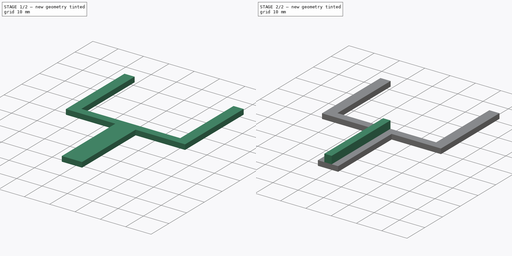
[diagram: build sequence overview — one tinted view per stage of 2, left to right]
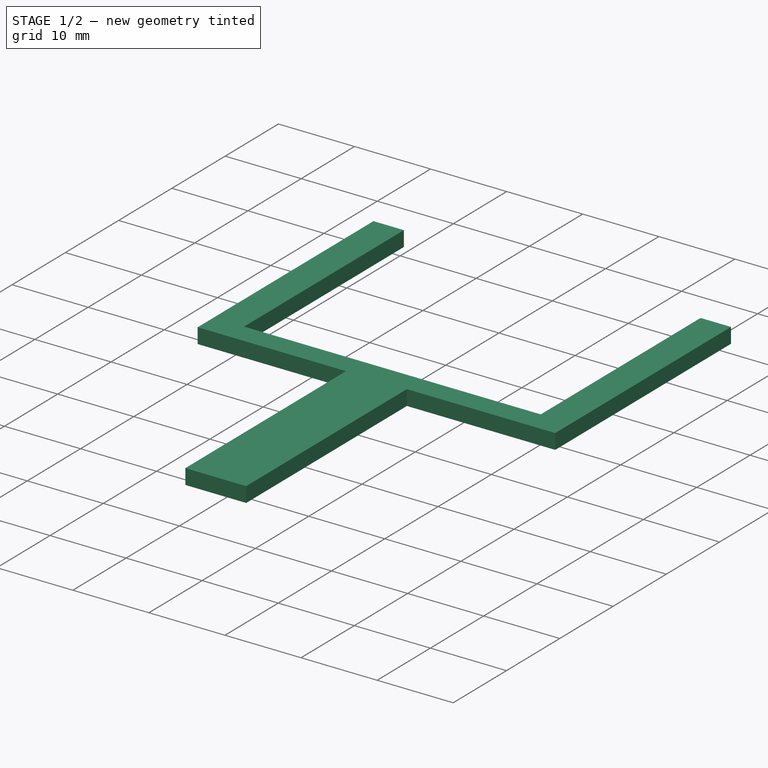
[diagram: stage 1 of 2 — iso view after this stage's code; geometry added in this stage tinted green]
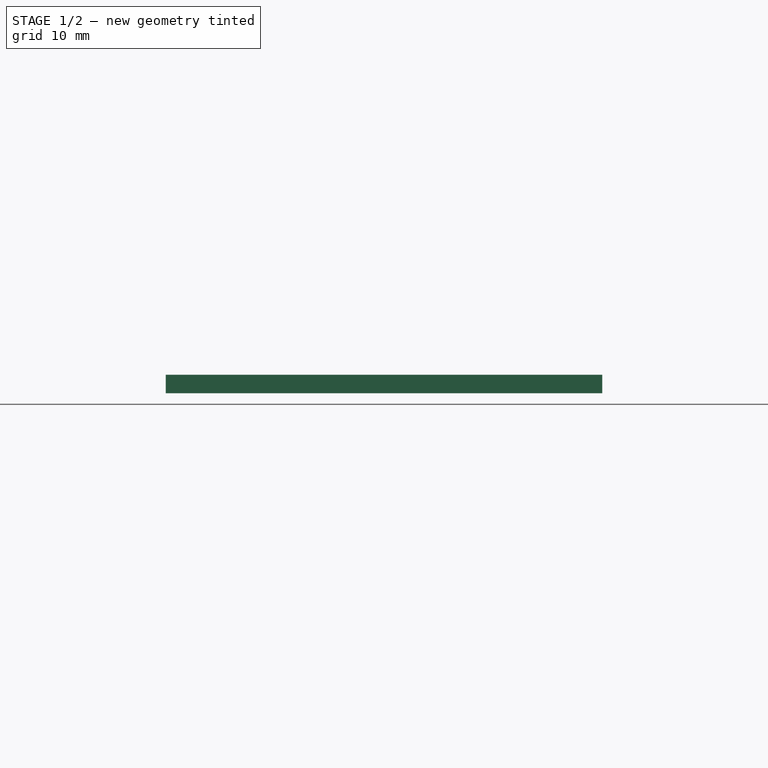
[diagram: stage 1 of 2 — front view after this stage's code; geometry added in this stage tinted green]
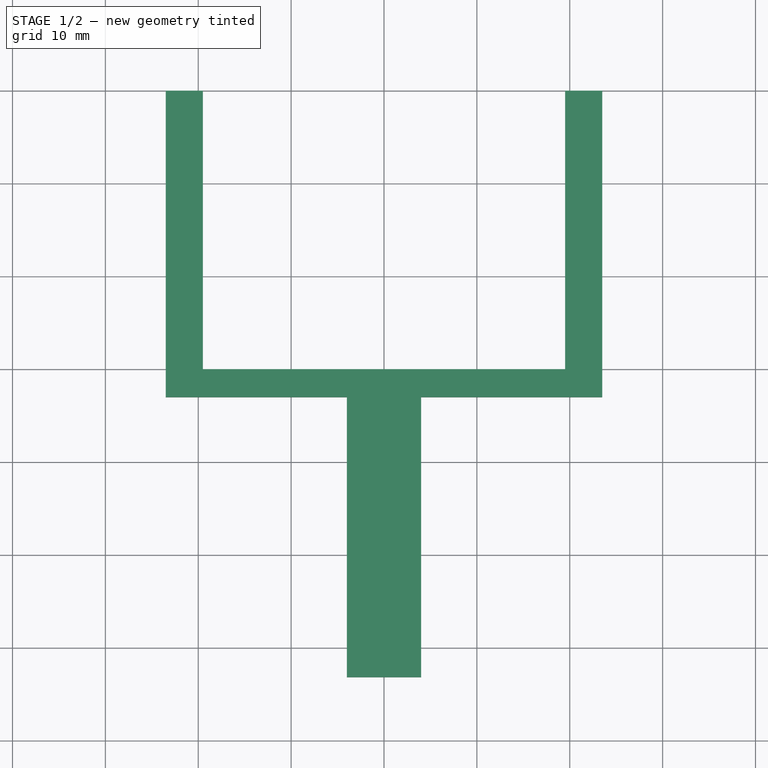
[diagram: stage 1 of 2 — top view after this stage's code; geometry added in this stage tinted green]
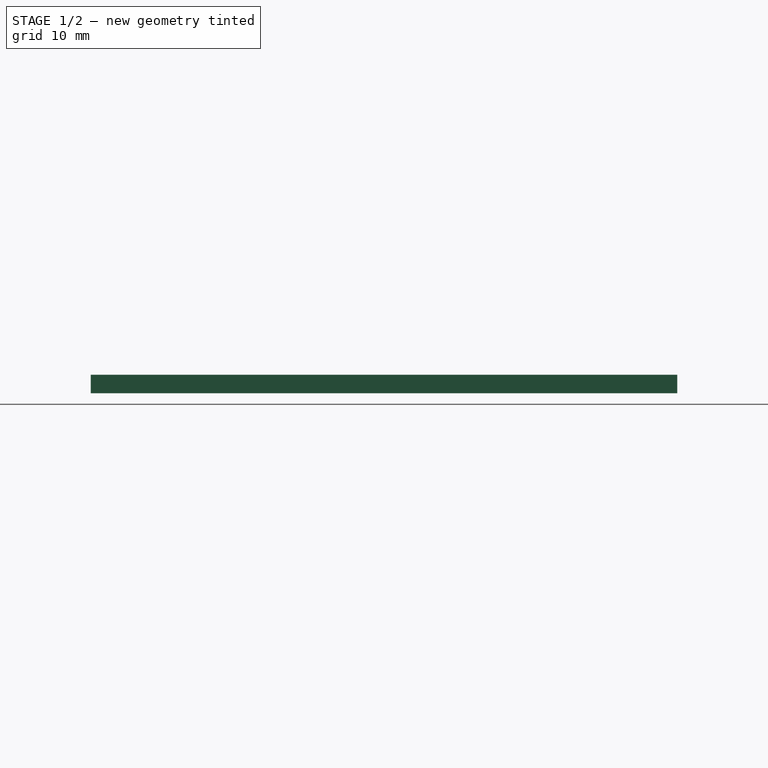
[diagram: stage 1 of 2 — right view after this stage's code; geometry added in this stage tinted green]
FCSTD DOCUMENT  (FreeCAD 0.16R6706 (Git))
Label: Gabarido dobradiça acrilico
License: All rights reserved
LicenseURL: http://en.wikipedia.org/wiki/All_rights_reserved
objects: Sketcher::SketchObject×2, PartDesign::Pad×2
note: 6 computed .brp shape members not serialized (recipe doc carries the construction recipe); baked Part::Feature solids carry a one-line shape summary decoded from their .brp

FEATURE [Sketcher::SketchObject] Sketch
  sketch-geometry (12):
    g0: LineSegment StartX=-19.5 StartY=0 StartZ=0 EndX=-19.5 EndY=30 EndZ=0
    g1: LineSegment StartX=-19.5 StartY=30 StartZ=0 EndX=-23.5 EndY=30 EndZ=0
    g2: LineSegment StartX=-23.5 StartY=30 StartZ=0 EndX=-23.5 EndY=-3 EndZ=0
    g3: LineSegment StartX=-23.5 StartY=-3 StartZ=0 EndX=-4 EndY=-3 EndZ=0
    g4: LineSegment StartX=-4 StartY=-3 StartZ=0 EndX=-4 EndY=-33.1664 EndZ=0
    g5: LineSegment StartX=-4 StartY=-33.1664 StartZ=0 EndX=4 EndY=-33.1664 EndZ=0
    g6: LineSegment StartX=4 StartY=-33.1664 StartZ=0 EndX=4 EndY=-3 EndZ=0
    g7: LineSegment StartX=4 StartY=-3 StartZ=0 EndX=23.5 EndY=-3 EndZ=0
    g8: LineSegment StartX=23.5 StartY=-3 StartZ=0 EndX=23.5 EndY=30 EndZ=0
    g9: LineSegment StartX=23.5 StartY=30 StartZ=0 EndX=19.5 EndY=30 EndZ=0
    g10: LineSegment StartX=19.5 StartY=30 StartZ=0 EndX=19.5 EndY=0 EndZ=0
    g11: LineSegment StartX=19.5 StartY=0 StartZ=0 EndX=-19.5 EndY=0 EndZ=0
  constraints (34):
    c: Coincident(g0,g1)
    c: Coincident(g1,g2)
    c: Coincident(g2,g3)
    c: Coincident(g3,g4)
    c: Coincident(g4,g5)
    c: Coincident(g5,g6)
    c: Coincident(g6,g7)
    c: Coincident(g7,g8)
    c: Coincident(g8,g9)
    c: Coincident(g9,g10)
    c: Coincident(g10,g11)
    c: Coincident(g0,g11)
    c: Horizontal(g1)
    c: Horizontal(g11)
    c: Horizontal(g9)
    c: Horizontal(g3)
    c: Horizontal(g7)
    c: Horizontal(g5)
    c: Vertical(g4)
    c: Vertical(g6)
    c: Vertical(g8)
    c: Vertical(g10)
    c: Vertical(g0)
    c: Vertical(g2)
    c: DistanceX(g11,g11) = 39
    c: Symmetric(g0,g10,g-1)
    c: Symmetric(g4,g5,g-2)
    c: Equal(g0,g10)
    c: Equal(g1,g9)
    c: Equal(g2,g8)
    c: DistanceX(g1,g1) = 4
    c: DistanceY(g0,g0) = 30
    c: DistanceY(g3,g0) = 3
    c: DistanceX(g5,g5) = 8
FEATURE [PartDesign::Pad] Pad
  Length = 2
  Length2 = 100
  Sketch = -> Sketch
  Type = 0
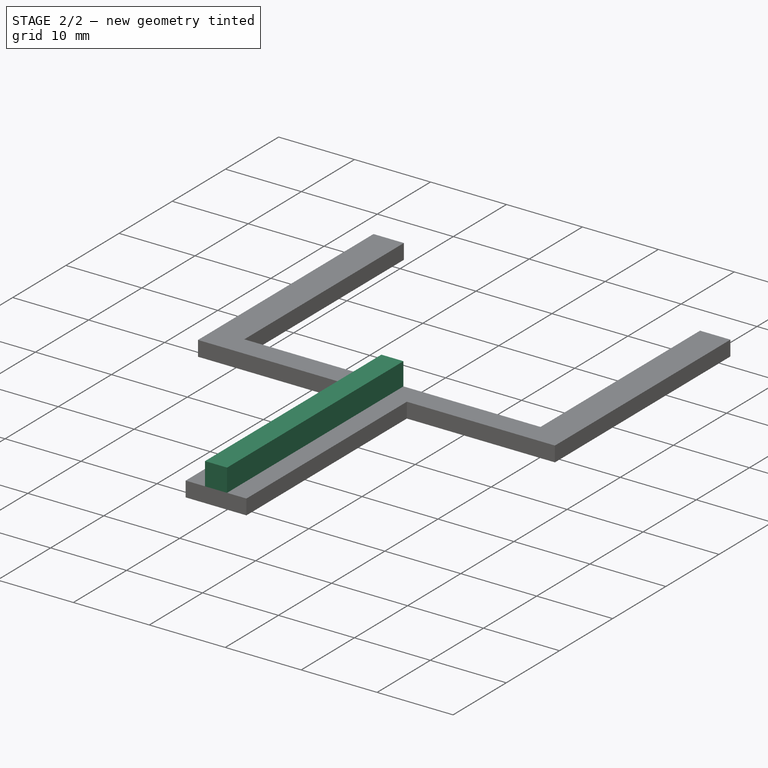
[diagram: stage 2 of 2 — iso view after this stage's code; geometry added in this stage tinted green]
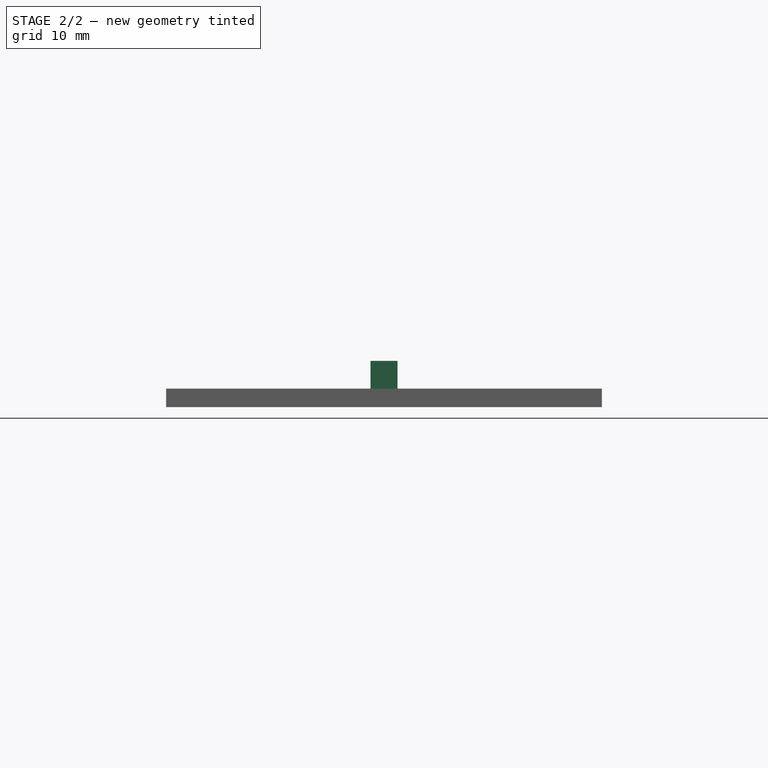
[diagram: stage 2 of 2 — front view after this stage's code; geometry added in this stage tinted green]
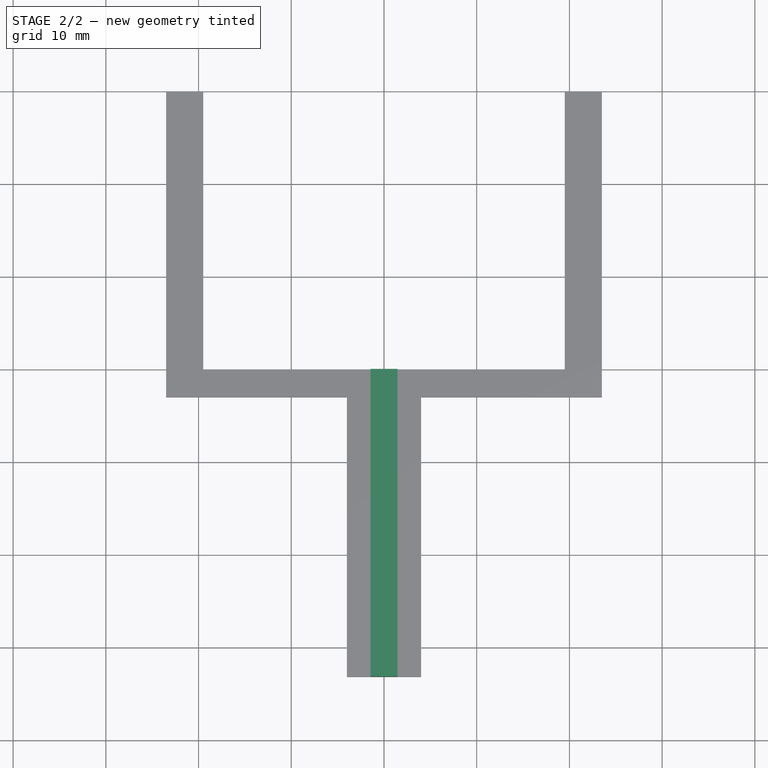
[diagram: stage 2 of 2 — top view after this stage's code; geometry added in this stage tinted green]
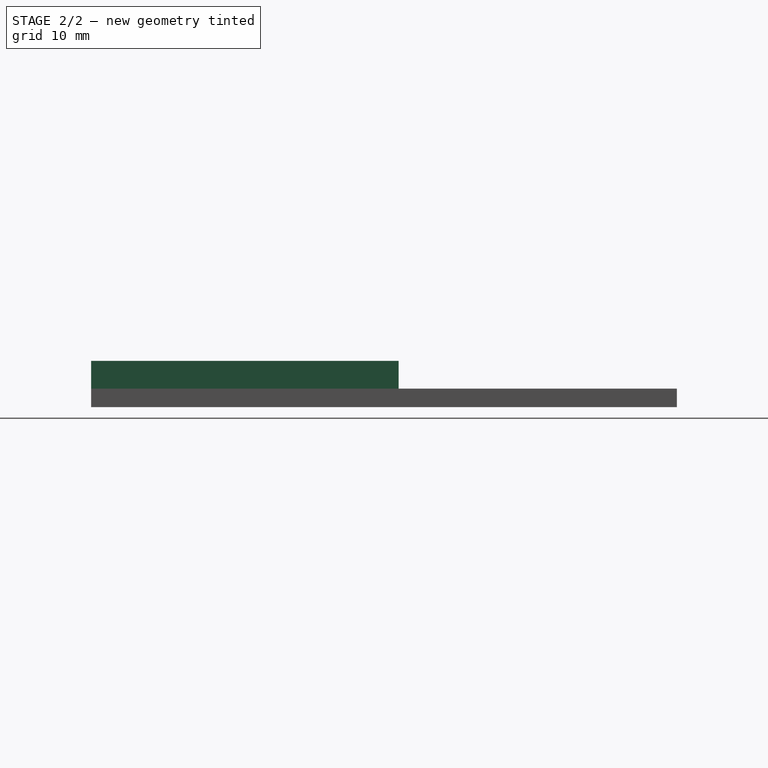
[diagram: stage 2 of 2 — right view after this stage's code; geometry added in this stage tinted green]
FEATURE [Sketcher::SketchObject] Sketch001
  ExternalGeometry = -> [Pad]
  Placement = pos=(0,0,2) rot=(0,0,1;0rad)
  Support = -> Pad [Face14]
  sketch-geometry (4):
    g0: LineSegment StartX=-1.45 StartY=0 StartZ=0 EndX=1.45 EndY=0 EndZ=0
    g1: LineSegment StartX=1.45 StartY=0 StartZ=0 EndX=1.45 EndY=-33.1664 EndZ=0
    g2: LineSegment StartX=1.45 StartY=-33.1664 StartZ=0 EndX=-1.45 EndY=-33.1664 EndZ=0
    g3: LineSegment StartX=-1.45 StartY=-33.1664 StartZ=0 EndX=-1.45 EndY=0 EndZ=0
  constraints (12):
    c: Coincident(g0,g1)
    c: Coincident(g1,g2)
    c: Coincident(g2,g3)
    c: Coincident(g3,g0)
    c: Horizontal(g0)
    c: Horizontal(g2)
    c: Vertical(g1)
    c: Vertical(g3)
    c: DistanceX(g0,g0) = 2.9
    c: Symmetric(g0,g0,g-2)
    c: PointOnObject(g0,g-1)
    c: PointOnObject(g2,g-3)
FEATURE [PartDesign::Pad] Pad001
  Length = 3
  Length2 = 100
  Sketch = -> Sketch001
  Type = 0
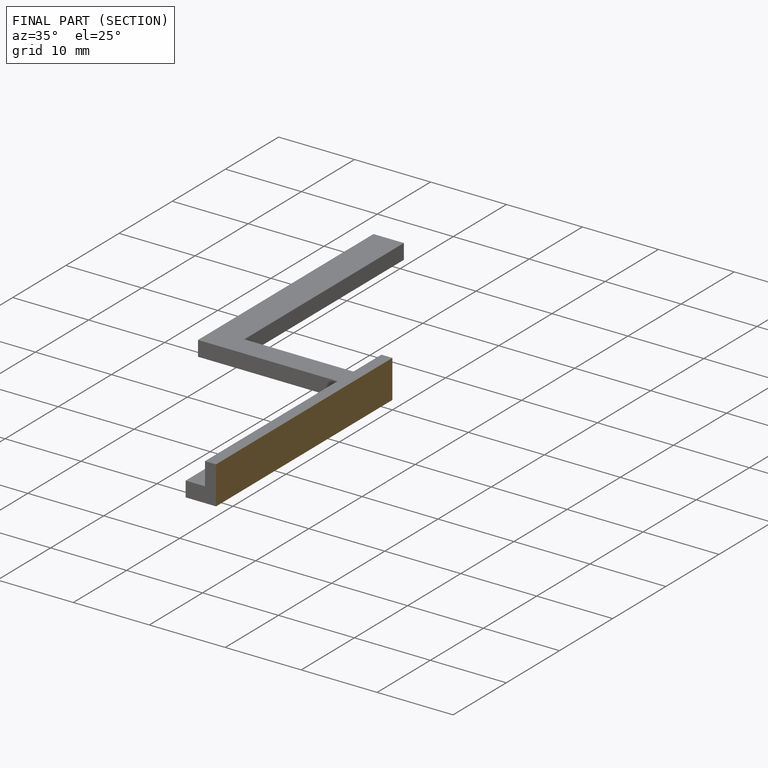
[diagram: finished part — half-section view (interior)]
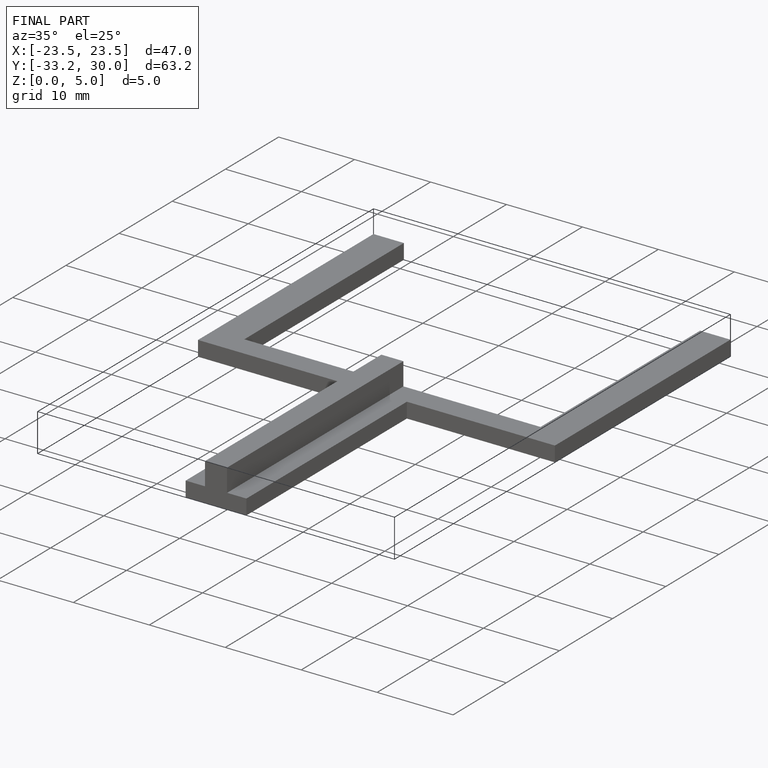
[diagram: finished part — iso view with bounding-box wireframe]
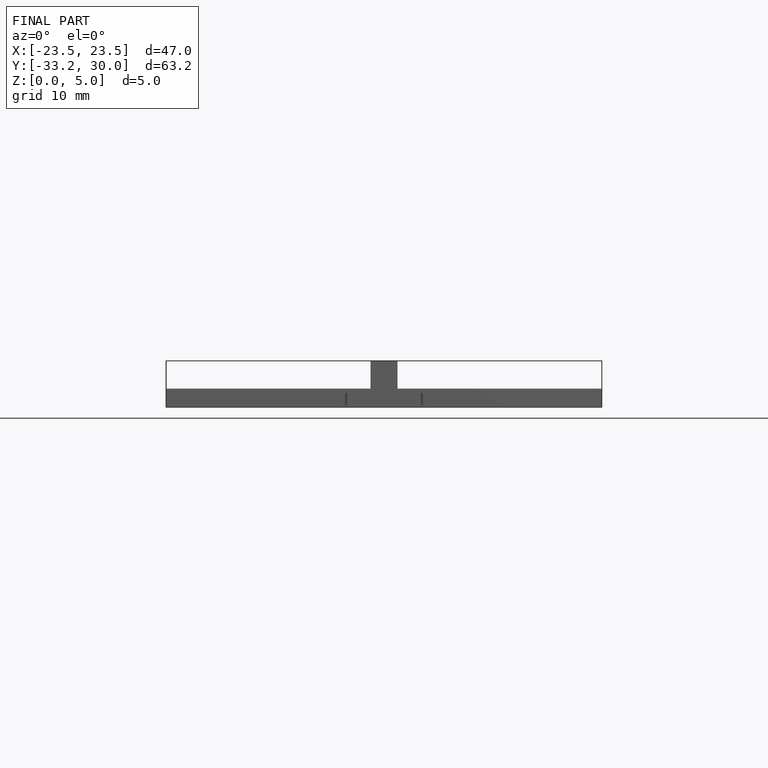
[diagram: finished part — front view with bounding-box wireframe]
